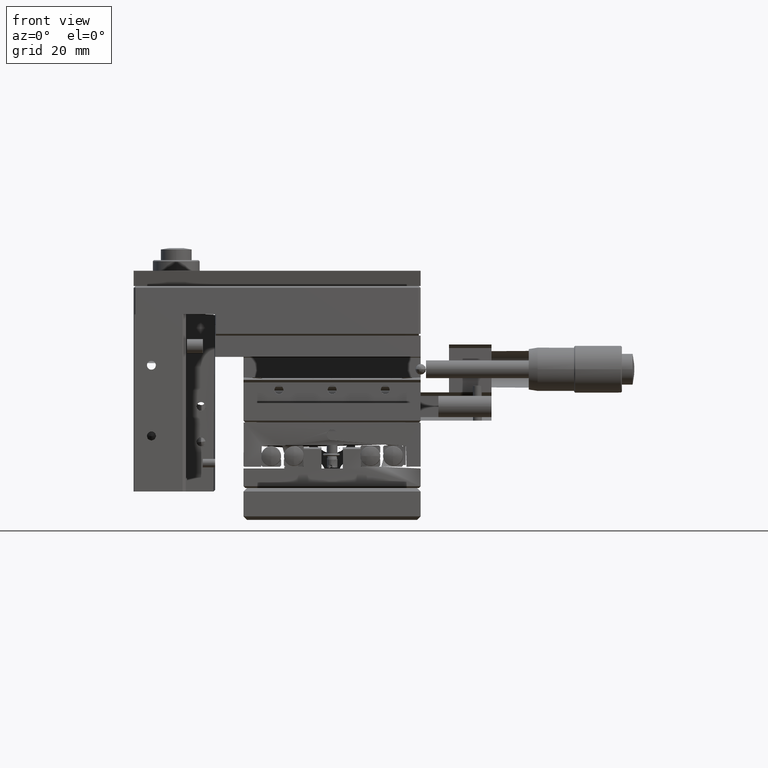
[diagram: clean part render]
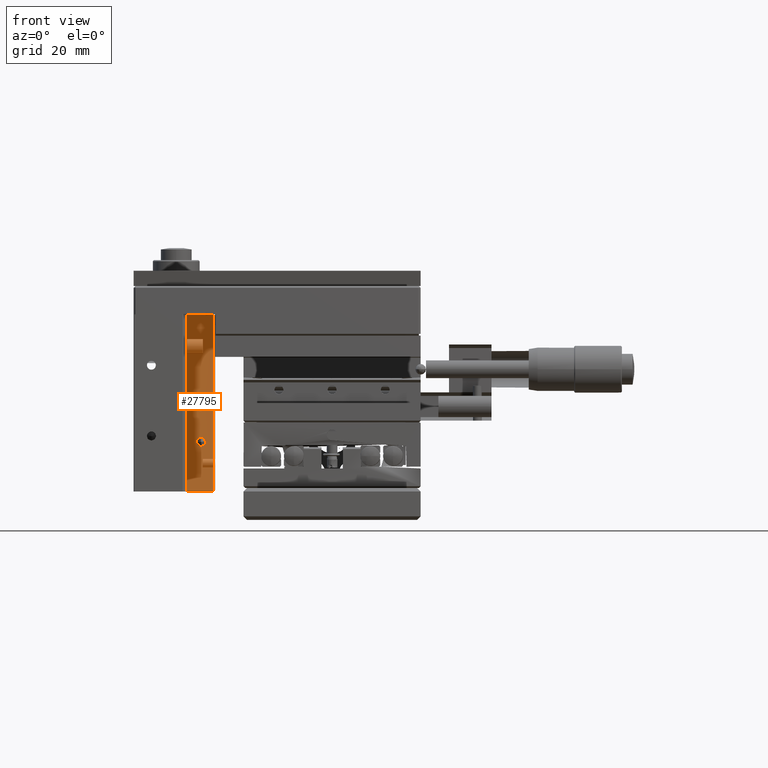
[diagram: same view with one face highlighted and labeled with its STEP entity id]
A machine part, front view. The second image highlights one B-rep face of the part: STEP entity #27795.
In plain terms, the highlighted face is a freeform B-spline surface patch.
Its self-contained STEP definition (entity closure, byte-faithful):
#460 = CARTESIAN_POINT ( 'NONE',  ( -25.36248454029423982, -27.49928257186590130, 9.252898801061967049 ) ) ;
#901 = CARTESIAN_POINT ( 'NONE',  ( -26.74649465136605997, -27.49928257186589775, -1.671865509095734170 ) ) ;
#2199 = CARTESIAN_POINT ( 'NONE',  ( -27.21223626407624963, -27.49928257186590130, 10.66956243521441117 ) ) ;
#2338 = CARTESIAN_POINT ( 'NONE',  ( -25.94930416728544031, -27.49928257186589420, 0.6695501862935728798 ) ) ;
#2563 = CARTESIAN_POINT ( 'NONE',  ( -27.67218337157243724, -27.49928257186590130, 0.2096073820047202607 ) ) ;
#2809 = B_SPLINE_CURVE_WITH_KNOTS ( 'NONE', 3,
 ( #16005, #15542, #44627, #37818, #26789, #22821, #5712, #12966, #12738, #33584, #40876, #2199, #9447, #8534, #5248, #36876, #19545, #29835 ),
 .UNSPECIFIED., .F., .F.,
 ( 4, 2, 2, 2, 2, 2, 2, 2, 4 ),
 ( 0.000000000000000000, 0.1250000000000000000, 0.2500000000000000000, 0.3750000000000000000, 0.5000000000000000000, 0.6250000000000000000, 0.7500000000000000000, 0.8750000000000000000, 1.000000000000000000 ),
 .UNSPECIFIED. ) ;
#3054 = CARTESIAN_POINT ( 'NONE',  ( -25.33076767884060132, -27.49928257186589775, -0.4218721381844254825 ) ) ;
#3129 = VERTEX_POINT ( 'NONE', #24001 ) ;
#3277 = CARTESIAN_POINT ( 'NONE',  ( -26.25552768314751617, -27.49928257186590130, 8.359863603956519285 ) ) ;
#3504 = CARTESIAN_POINT ( 'NONE',  ( -27.21223119037285798, -27.49928257186589420, 8.486705537337586591 ) ) ;
#3732 = CARTESIAN_POINT ( 'NONE',  ( -26.41504070629293821, -27.49928257186590486, 8.328121232736128476 ) ) ;
#4184 = B_SPLINE_CURVE_WITH_KNOTS ( 'NONE', 1,
 ( #22580, #22107 ),
 .UNSPECIFIED., .F., .F.,
 ( 2, 2 ),
 ( 0.000000000000000000, 1.000000000000000000 ),
 .UNSPECIFIED. ) ;
#4876 = CARTESIAN_POINT ( 'NONE',  ( -25.36248454029423982, -27.49928257186590130, -0.7471011989380341722 ) ) ;
#5248 = CARTESIAN_POINT ( 'NONE',  ( -27.67218337157244434, -27.49928257186590130, 10.20960738198971995 ) ) ;
#5339 = CARTESIAN_POINT ( 'NONE',  ( -25.33076767884059777, -27.49928257186590130, -0.5876497687858991403 ) ) ;
#5392 = CARTESIAN_POINT ( 'NONE',  ( -26.25552260948304806, -27.49928257186589065, 0.7964043686158357449 ) ) ;
#5712 = CARTESIAN_POINT ( 'NONE',  ( -25.94930416731877187, -27.49928257186589420, 10.66955018629356999 ) ) ;
#7008 = CARTESIAN_POINT ( 'NONE',  ( -27.67220225225356955, -27.49928257186589775, 8.946659276592498600 ) ) ;
#8376 = ORIENTED_EDGE ( 'NONE', *, *, #25788, .T. ) ;
#8388 = CARTESIAN_POINT ( 'NONE',  ( -25.48935198610875830, -27.49928257186589775, -1.053351658343566699 ) ) ;
#8534 = CARTESIAN_POINT ( 'NONE',  ( -27.58184250889888744, -27.49928257186589775, 10.34482935966071437 ) ) ;
#8615 = CARTESIAN_POINT ( 'NONE',  ( -26.90601274822105893, -27.49928257186589775, -1.640148644975486070 ) ) ;
#8843 = CARTESIAN_POINT ( 'NONE',  ( -25.94929909363667164, -27.49928257186590130, -1.513306711610117983 ) ) ;
#9074 = CARTESIAN_POINT ( 'NONE',  ( -27.34746917666843302, -27.49928257186589065, -1.422946968258401723 ) ) ;
#9356 = CARTESIAN_POINT ( 'NONE',  ( -27.58184250890607458, -27.49928257186590130, 0.3448293596583485443 ) ) ;
#9397 = FACE_BOUND ( 'NONE', #32238, .T. ) ;
#9447 = CARTESIAN_POINT ( 'NONE',  ( -27.34745980174868407, -27.49928257186589775, 10.57919331693677911 ) ) ;
#9810 = CARTESIAN_POINT ( 'NONE',  ( -26.74649465138757520, -27.49928257186589775, 0.8281344908950327710 ) ) ;
#11940 = CARTESIAN_POINT ( 'NONE',  ( -25.33076767884060132, -27.49928257186589065, -0.2561291598234001210 ) ) ;
#12450 = CARTESIAN_POINT ( 'NONE',  ( -30.58076767884060132, -27.49928257186589775, 35.57812786181560227 ) ) ;
#12598 = B_SPLINE_CURVE_WITH_KNOTS ( 'NONE', 1,
 ( #27403, #45700 ),
 .UNSPECIFIED., .F., .F.,
 ( 2, 2 ),
 ( 0.000000000000000000, 1.000000000000000000 ),
 .UNSPECIFIED. ) ;
#12738 = CARTESIAN_POINT ( 'NONE',  ( -26.41504070625973810, -27.49928257186589775, 10.82812123273616578 ) ) ;
#12877 = CARTESIAN_POINT ( 'NONE',  ( -27.21223626404406204, -27.49928257186590130, 0.6695624352417691716 ) ) ;
#12966 = CARTESIAN_POINT ( 'NONE',  ( -26.25552260944971650, -27.49928257186589065, 10.79640436861584263 ) ) ;
#13107 = CARTESIAN_POINT ( 'NONE',  ( -27.83076767884060487, -27.49928257186590130, -0.2560945076129326203 ) ) ;
#13248 = B_SPLINE_CURVE_WITH_KNOTS ( 'NONE', 3,
 ( #22672, #26187, #40969, #29924, #40267, #9074, #32976, #8615, #901, #15172, #40492, #8843, #29466, #23138, #8388, #4876, #5339, #37433 ),
 .UNSPECIFIED., .F., .F.,
 ( 4, 2, 2, 2, 2, 2, 2, 2, 4 ),
 ( 0.000000000000000000, 0.1250000000000000000, 0.2500000000000000000, 0.3750000000000000000, 0.5000000000000000000, 0.6250000000000000000, 0.7500000000000000000, 0.8750000000000000000, 1.000000000000000000 ),
 .UNSPECIFIED. ) ;
#13346 = CARTESIAN_POINT ( 'NONE',  ( -30.58076767884060132, -27.49928257186589775, -14.42187213818439950 ) ) ;
#14266 = CARTESIAN_POINT ( 'NONE',  ( -25.57969284878983984, -27.49928257186589065, 8.811426363967301612 ) ) ;
#14502 = CARTESIAN_POINT ( 'NONE',  ( -27.34746917668413602, -27.49928257186589065, 8.577053031757301937 ) ) ;
#15172 = CARTESIAN_POINT ( 'NONE',  ( -26.41504070631514267, -27.49928257186590130, -1.671878767273067945 ) ) ;
#15202 = EDGE_CURVE ( 'NONE', #42859, #17512, #13248, .T. ) ;
#15542 = CARTESIAN_POINT ( 'NONE',  ( -25.33076767884059066, -27.49928257186589065, 9.743870840185797633 ) ) ;
#16005 = CARTESIAN_POINT ( 'NONE',  ( -25.33076767884060132, -27.49928257186589775, 9.578127861815570299 ) ) ;
#16651 = FACE_BOUND ( 'NONE', #45327, .T. ) ;
#16838 = CARTESIAN_POINT ( 'NONE',  ( -27.83076767884060132, -27.49928257186589775, -0.4218721381844254825 ) ) ;
#16875 = ORIENTED_EDGE ( 'NONE', *, *, #15202, .T. ) ;
#16992 = B_SPLINE_CURVE_WITH_KNOTS ( 'NONE', 3,
 ( #22726, #11940, #37013, #19222, #33494, #34645, #2338, #5392, #30208, #9810, #30901, #12877, #23185, #9356, #2563, #41256, #13107, #16838 ),
 .UNSPECIFIED., .F., .F.,
 ( 4, 2, 2, 2, 2, 2, 2, 2, 4 ),
 ( 0.000000000000000000, 0.1250000000000000000, 0.2500000000000000000, 0.3750000000000000000, 0.5000000000000000000, 0.6250000000000000000, 0.7500000000000000000, 0.8750000000000000000, 1.000000000000000000 ),
 .UNSPECIFIED. ) ;
#17512 = VERTEX_POINT ( 'NONE', #3054 ) ;
#17604 = CARTESIAN_POINT ( 'NONE',  ( -23.08076767884060132, -27.49928257186589775, 35.57812786181560227 ) ) ;
#18257 = CARTESIAN_POINT ( 'NONE',  ( -27.83076767884060487, -27.49928257186588709, 9.412384883432030946 ) ) ;
#18493 = CARTESIAN_POINT ( 'NONE',  ( -27.83076767884060132, -27.49928257186589775, 9.578127861815570299 ) ) ;
#19067 = CARTESIAN_POINT ( 'NONE',  ( -30.58076767884060132, -27.49928257186589775, 35.57812786181560227 ) ) ;
#19157 = ORIENTED_EDGE ( 'NONE', *, *, #34266, .T. ) ;
#19222 = CARTESIAN_POINT ( 'NONE',  ( -25.48933310541169917, -27.49928257186589775, 0.2095964470227485166 ) ) ;
#19545 = CARTESIAN_POINT ( 'NONE',  ( -27.83076767884060487, -27.49928257186590130, 9.743905492402067381 ) ) ;
#21293 = CARTESIAN_POINT ( 'NONE',  ( -25.48935198610875474, -27.49928257186589775, 8.946648341656427306 ) ) ;
#21997 = CARTESIAN_POINT ( 'NONE',  ( -25.81407555592500813, -27.49928257186589775, 8.577062406697500307 ) ) ;
#22107 = CARTESIAN_POINT ( 'NONE',  ( -23.08076767884060132, -27.49928257186589775, -14.42187213818439950 ) ) ;
#22580 = CARTESIAN_POINT ( 'NONE',  ( -23.08076767884060132, -27.49928257186589775, 35.57812786181560227 ) ) ;
#22672 = CARTESIAN_POINT ( 'NONE',  ( -27.83076767884060132, -27.49928257186589775, -0.4218721381844254825 ) ) ;
#22726 = CARTESIAN_POINT ( 'NONE',  ( -25.33076767884060132, -27.49928257186589775, -0.4218721381844254825 ) ) ;
#22728 = EDGE_CURVE ( 'NONE', #22999, #30300, #4184, .T. ) ;
#22821 = CARTESIAN_POINT ( 'NONE',  ( -25.81406618098970540, -27.49928257186589065, 10.57920269186648099 ) ) ;
#22999 = VERTEX_POINT ( 'NONE', #17604 ) ;
#23138 = CARTESIAN_POINT ( 'NONE',  ( -25.57969284879634486, -27.49928257186589065, -1.188573636048402049 ) ) ;
#23185 = CARTESIAN_POINT ( 'NONE',  ( -27.34745980174151470, -27.49928257186590130, 0.5791933169391518810 ) ) ;
#23322 = CARTESIAN_POINT ( 'NONE',  ( -23.08076767884060132, -27.49928257186589775, -14.42187213818439950 ) ) ;
#23828 = CARTESIAN_POINT ( 'NONE',  ( -30.58076767884060132, -27.49928257186589775, -14.42187213818439950 ) ) ;
#24001 = CARTESIAN_POINT ( 'NONE',  ( -25.33076767884060132, -27.49928257186589775, 9.578127861815570299 ) ) ;
#25222 = VERTEX_POINT ( 'NONE', #19067 ) ;
#25515 = CARTESIAN_POINT ( 'NONE',  ( -26.90601274822106248, -27.49928257186589065, 8.359851355015312180 ) ) ;
#25788 = EDGE_CURVE ( 'NONE', #29205, #25222, #31789, .T. ) ;
#26187 = CARTESIAN_POINT ( 'NONE',  ( -27.83076767884060132, -27.49928257186588709, -0.5876151165546332766 ) ) ;
#26399 = ORIENTED_EDGE ( 'NONE', *, *, #44808, .F. ) ;
#26789 = CARTESIAN_POINT ( 'NONE',  ( -25.57970222372513547, -27.49928257186589420, 10.34481998473101427 ) ) ;
#26873 = CARTESIAN_POINT ( 'NONE',  ( -30.58076767884060132, -27.49928257186589775, -14.42187213818439950 ) ) ;
#27132 = CARTESIAN_POINT ( 'NONE',  ( -27.83076767884060132, -27.49928257186589775, -0.4218721381844254825 ) ) ;
#27403 = CARTESIAN_POINT ( 'NONE',  ( -30.58076767884060132, -27.49928257186589775, 35.57812786181560227 ) ) ;
#27631 = B_SPLINE_SURFACE_WITH_KNOTS ( 'NONE', 1, 1, ( 
 ( #12450, #41062 ),
 ( #34234, #41296 ) ),
 .UNSPECIFIED., .F., .F., .F.,
 ( 2, 2 ),
 ( 2, 2 ),
 ( 0.000000000000000000, 1.000000000000000000 ),
 ( 0.000000000000000000, 1.000000000000000000 ),
 .UNSPECIFIED. ) ;
#27795 = ADVANCED_FACE ( 'NONE', ( #9397, #16651, #44577 ), #27631, .T. ) ;
#28451 = ORIENTED_EDGE ( 'NONE', *, *, #45222, .T. ) ;
#28559 = CARTESIAN_POINT ( 'NONE',  ( -25.33076767884059777, -27.49928257186590486, 9.412350231214105634 ) ) ;
#28788 = CARTESIAN_POINT ( 'NONE',  ( -25.94929909362096510, -27.49928257186590130, 8.486693288396384816 ) ) ;
#29205 = VERTEX_POINT ( 'NONE', #26873 ) ;
#29466 = CARTESIAN_POINT ( 'NONE',  ( -25.81407555591849601, -27.49928257186589775, -1.422937593286795144 ) ) ;
#29835 = CARTESIAN_POINT ( 'NONE',  ( -27.83076767884060132, -27.49928257186589775, 9.578127861815570299 ) ) ;
#29924 = CARTESIAN_POINT ( 'NONE',  ( -27.67220225226299846, -27.49928257186589775, -1.053340723398099144 ) ) ;
#30208 = CARTESIAN_POINT ( 'NONE',  ( -26.41504070629362744, -27.49928257186589420, 0.8281212327361732184 ) ) ;
#30300 = VERTEX_POINT ( 'NONE', #23322 ) ;
#30381 = ORIENTED_EDGE ( 'NONE', *, *, #38249, .T. ) ;
#30901 = CARTESIAN_POINT ( 'NONE',  ( -26.90600767454988684, -27.49928257186590130, 0.7963921196676394532 ) ) ;
#31789 = B_SPLINE_CURVE_WITH_KNOTS ( 'NONE', 1,
 ( #13346, #45026 ),
 .UNSPECIFIED., .F., .F.,
 ( 2, 2 ),
 ( 0.000000000000000000, 1.000000000000000000 ),
 .UNSPECIFIED. ) ;
#31818 = B_SPLINE_CURVE_WITH_KNOTS ( 'NONE', 1,
 ( #23828, #42345 ),
 .UNSPECIFIED., .F., .F.,
 ( 2, 2 ),
 ( 0.000000000000000000, 1.000000000000000000 ),
 .UNSPECIFIED. ) ;
#32238 = EDGE_LOOP ( 'NONE', ( #19157, #16875 ) ) ;
#32772 = CARTESIAN_POINT ( 'NONE',  ( -26.74649465138827154, -27.49928257186589775, 8.328134490895063635 ) ) ;
#32976 = CARTESIAN_POINT ( 'NONE',  ( -27.21223119037285798, -27.49928257186589420, -1.513294462671622931 ) ) ;
#33494 = CARTESIAN_POINT ( 'NONE',  ( -25.57970222370157387, -27.49928257186589420, 0.3448199847074515101 ) ) ;
#33584 = CARTESIAN_POINT ( 'NONE',  ( -26.74649465142145743, -27.49928257186590130, 10.82813449089503166 ) ) ;
#34234 = CARTESIAN_POINT ( 'NONE',  ( -23.08076767884060132, -27.49928257186589775, 35.57812786181560227 ) ) ;
#34266 = EDGE_CURVE ( 'NONE', #17512, #42859, #16992, .T. ) ;
#34645 = CARTESIAN_POINT ( 'NONE',  ( -25.81406618101325989, -27.49928257186589065, 0.5792026918900486931 ) ) ;
#36820 = ORIENTED_EDGE ( 'NONE', *, *, #38701, .T. ) ;
#36876 = CARTESIAN_POINT ( 'NONE',  ( -27.79905081738697348, -27.49928257186590130, 9.903356922554193531 ) ) ;
#37013 = CARTESIAN_POINT ( 'NONE',  ( -25.36250342099131316, -27.49928257186589775, -0.09663214247884437114 ) ) ;
#37433 = CARTESIAN_POINT ( 'NONE',  ( -25.33076767884060132, -27.49928257186589775, -0.4218721381844254825 ) ) ;
#37818 = CARTESIAN_POINT ( 'NONE',  ( -25.48933310541820418, -27.49928257186589775, 10.20959644702924862 ) ) ;
#38249 = EDGE_CURVE ( 'NONE', #43469, #3129, #42585, .T. ) ;
#38701 = EDGE_CURVE ( 'NONE', #3129, #43469, #2809, .T. ) ;
#39342 = CARTESIAN_POINT ( 'NONE',  ( -27.79903193670584116, -27.49928257186590486, 9.252887866125899308 ) ) ;
#39482 = EDGE_LOOP ( 'NONE', ( #28451, #46010, #26399, #8376 ) ) ;
#40267 = CARTESIAN_POINT ( 'NONE',  ( -27.58183313397914205, -27.49928257186589420, -1.188564261076795692 ) ) ;
#40492 = CARTESIAN_POINT ( 'NONE',  ( -26.25552768313180252, -27.49928257186590130, -1.640136396036987465 ) ) ;
#40544 = CARTESIAN_POINT ( 'NONE',  ( -27.83076767884060132, -27.49928257186589775, 9.578127861815570299 ) ) ;
#40876 = CARTESIAN_POINT ( 'NONE',  ( -26.90600767451767439, -27.49928257186590130, 10.79639211969500323 ) ) ;
#40969 = CARTESIAN_POINT ( 'NONE',  ( -27.79903193669641936, -27.49928257186590486, -0.7471121338834946224 ) ) ;
#41062 = CARTESIAN_POINT ( 'NONE',  ( -30.58076767884060132, -27.49928257186589775, -14.42187213818439950 ) ) ;
#41256 = CARTESIAN_POINT ( 'NONE',  ( -27.79905081738697348, -27.49928257186590130, -0.09664307746081617079 ) ) ;
#41296 = CARTESIAN_POINT ( 'NONE',  ( -23.08076767884060132, -27.49928257186589775, -14.42187213818439950 ) ) ;
#42345 = CARTESIAN_POINT ( 'NONE',  ( -23.08076767884060132, -27.49928257186589775, -14.42187213818439950 ) ) ;
#42427 = CARTESIAN_POINT ( 'NONE',  ( -27.58183313396344261, -27.49928257186589420, 8.811435738907499982 ) ) ;
#42585 = B_SPLINE_CURVE_WITH_KNOTS ( 'NONE', 3,
 ( #18493, #18257, #39342, #7008, #42427, #14502, #3504, #25515, #32772, #3732, #3277, #28788, #21997, #14266, #21293, #460, #28559, #46183 ),
 .UNSPECIFIED., .F., .F.,
 ( 4, 2, 2, 2, 2, 2, 2, 2, 4 ),
 ( 0.000000000000000000, 0.1250000000000000000, 0.2500000000000000000, 0.3750000000000000000, 0.5000000000000000000, 0.6250000000000000000, 0.7500000000000000000, 0.8750000000000000000, 1.000000000000000000 ),
 .UNSPECIFIED. ) ;
#42859 = VERTEX_POINT ( 'NONE', #27132 ) ;
#43469 = VERTEX_POINT ( 'NONE', #40544 ) ;
#44577 = FACE_OUTER_BOUND ( 'NONE', #39482, .T. ) ;
#44627 = CARTESIAN_POINT ( 'NONE',  ( -25.36250342098480814, -27.49928257186589775, 9.903367857514650652 ) ) ;
#44808 = EDGE_CURVE ( 'NONE', #29205, #30300, #31818, .T. ) ;
#45026 = CARTESIAN_POINT ( 'NONE',  ( -30.58076767884060132, -27.49928257186589775, 35.57812786181560227 ) ) ;
#45222 = EDGE_CURVE ( 'NONE', #25222, #22999, #12598, .T. ) ;
#45327 = EDGE_LOOP ( 'NONE', ( #36820, #30381 ) ) ;
#45700 = CARTESIAN_POINT ( 'NONE',  ( -23.08076767884060132, -27.49928257186589775, 35.57812786181560227 ) ) ;
#46010 = ORIENTED_EDGE ( 'NONE', *, *, #22728, .T. ) ;
#46183 = CARTESIAN_POINT ( 'NONE',  ( -25.33076767884060132, -27.49928257186589775, 9.578127861815570299 ) ) ;